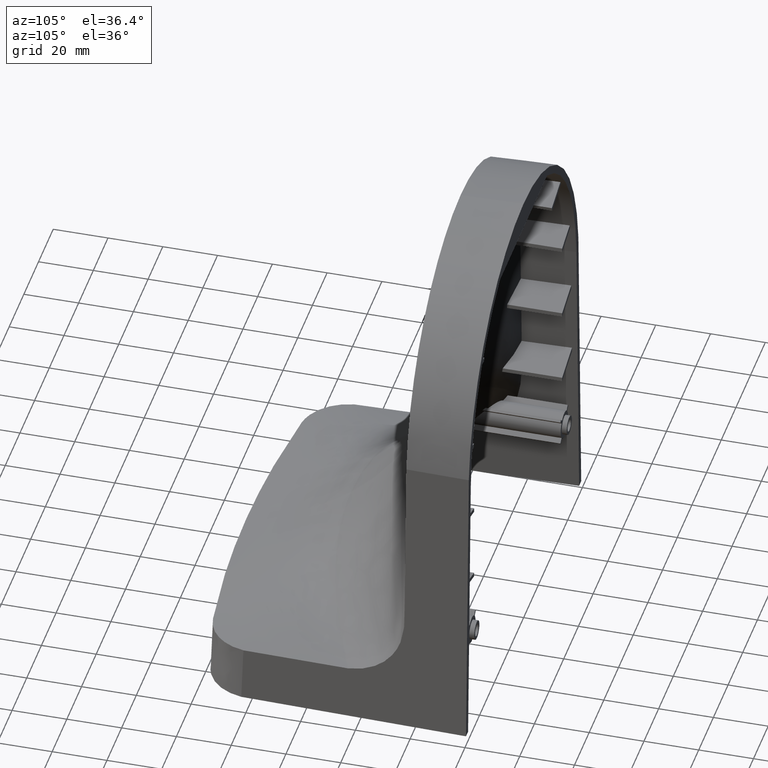
[diagram: clean part render]
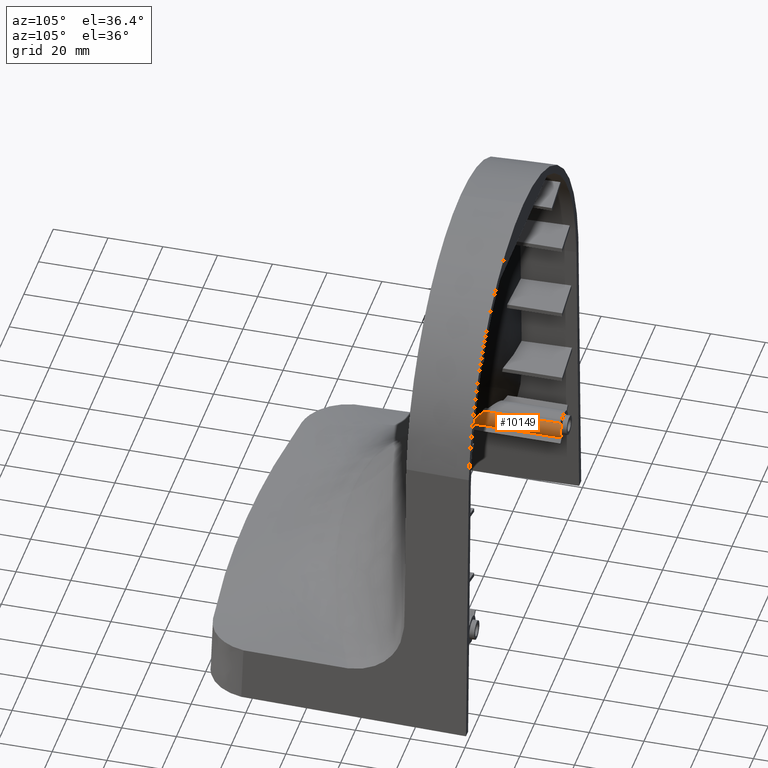
[diagram: same view with one face highlighted and labeled with its STEP entity id]
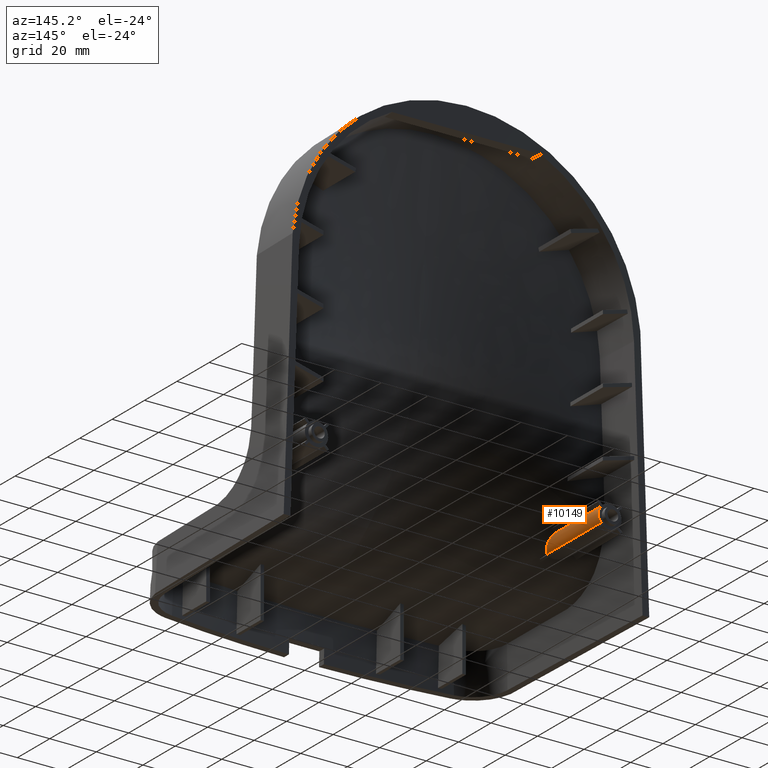
[diagram: same view with one face highlighted and labeled with its STEP entity id]
A machine part, auxiliary view. The second image highlights one B-rep face of the part: STEP entity #10149.
A second angle (auxiliary view) of the same face is appended — the face is thin or edge-on in the first view.
In plain terms, the highlighted cylindrical surface (edge-blend (fillet) strip) has radius 5 mm, axis along (0, 1, 0).
Its self-contained STEP definition (entity closure, byte-faithful):
#355 = CARTESIAN_POINT ( 'NONE',  ( -59.12863478953909890, -2.000000000000000000, 38.66425842927424839 ) ) ;
#1013 = CARTESIAN_POINT ( 'NONE',  ( -58.56503625960989012, -34.92410649284992985, 33.19121324629672642 ) ) ;
#1844 = CARTESIAN_POINT ( 'NONE',  ( -58.21611343058530963, -34.45384546166442163, 34.04600321036977562 ) ) ;
#2123 = CARTESIAN_POINT ( 'NONE',  ( -59.12863478953920549, -35.21922448551605100, 32.33574157072560240 ) ) ;
#3810 = ORIENTED_EDGE ( 'NONE', *, *, #15329, .T. ) ;
#4149 = B_SPLINE_CURVE_WITH_KNOTS ( 'NONE', 3,
 ( #2123, #53035, #48243, #31262, #10616, #18821, #19378, #48514, #40583, #1013, #27572, #53316, #5821, #26741, #9512, #14593, #1844, #43992, #23610, #5271, #31819, #48794, #36622, #49071, #22503, #36342, #45094, #18270, #23052, #44266, #18542, #5550, #19100, #40300, #44812, #39758, #35516, #40857, #52761, #10065, #22777, #14036, #31541, #32095, #6097 ),
 .UNSPECIFIED., .F., .F.,
 ( 4, 2, 1, 1, 1, 2, 2, 2, 1, 1, 2, 2, 2, 1, 1, 2, 2, 2, 1, 1, 2, 2, 2, 1, 1, 2, 2, 4 ),
 ( 0.000000000000000000, 0.06249999999999508726, 0.09374999999999229783, 0.1093749999999909100, 0.1171874999999902023, 0.1210937499999903549, 0.1249999999999905076, 0.1874999999999977796, 0.2187500000000002498, 0.2343750000000018319, 0.2421875000000023037, 0.2500000000000027756, 0.3125000000000188183, 0.3437500000000260902, 0.3593750000000288658, 0.3671875000000291989, 0.3750000000000295319, 0.4375000000000410227, 0.4687500000000475731, 0.4843750000000508482, 0.4921875000000515699, 0.5000000000000522915, 0.6250000000000329736, 0.6875000000000250910, 0.7187500000000210942, 0.7343750000000198730, 0.7500000000000186517, 1.000000000000000000 ),
 .UNSPECIFIED. ) ;
#4468 = VERTEX_POINT ( 'NONE', #30658 ) ;
#5044 = DIRECTION ( 'NONE',  ( 0.000000000000000000, -1.000000000000000000, 0.000000000000000000 ) ) ;
#5271 = CARTESIAN_POINT ( 'NONE',  ( -58.12723923534719717, -34.24423699587433134, 34.36960634789831914 ) ) ;
#5550 = CARTESIAN_POINT ( 'NONE',  ( -58.00476202913282009, -33.21333001664080342, 35.71880375307776490 ) ) ;
#5661 = LINE ( 'NONE', #31374, #16840 ) ;
#5821 = CARTESIAN_POINT ( 'NONE',  ( -58.33230763439989630, -34.65801779793859794, 33.70591202094399108 ) ) ;
#6097 = CARTESIAN_POINT ( 'NONE',  ( -59.12863478953909890, -30.23777583776625022, 38.66425842927424839 ) ) ;
#8849 = DIRECTION ( 'NONE',  ( 0.000000000000000000, 0.000000000000000000, 1.000000000000000000 ) ) ;
#9449 = EDGE_CURVE ( 'NONE', #26508, #4468, #17956, .T. ) ;
#9512 = CARTESIAN_POINT ( 'NONE',  ( -58.24597500065441835, -34.51329696354621035, 33.95034632925386830 ) ) ;
#9693 = FACE_OUTER_BOUND ( 'NONE', #50680, .T. ) ;
#10065 = CARTESIAN_POINT ( 'NONE',  ( -58.29998422718709605, -31.84338393622985919, 37.20613909134686992 ) ) ;
#10149 = ADVANCED_FACE ( 'NONE', ( #9693 ), #26926, .T. ) ;
#10616 = CARTESIAN_POINT ( 'NONE',  ( -58.70776554954989024, -35.03689188591146575, 32.93292181172869704 ) ) ;
#10912 = VERTEX_POINT ( 'NONE', #355 ) ;
#14036 = CARTESIAN_POINT ( 'NONE',  ( -58.33574017759458741, -31.74725031592112146, 37.30150851543640300 ) ) ;
#14593 = CARTESIAN_POINT ( 'NONE',  ( -58.22792741793259097, -34.47777211189369240, 34.00767613554211266 ) ) ;
#15329 = EDGE_CURVE ( 'NONE', #26508, #10912, #37760, .T. ) ;
#16840 = VECTOR ( 'NONE', #31100, 1000.000000000000000 ) ;
#17598 = VERTEX_POINT ( 'NONE', #25573 ) ;
#17956 = LINE ( 'NONE', #27535, #30588 ) ;
#18270 = CARTESIAN_POINT ( 'NONE',  ( -58.00529007781756263, -33.61161843111369052, 35.23129766691222642 ) ) ;
#18542 = CARTESIAN_POINT ( 'NONE',  ( -58.00255797231403676, -33.25737567424927477, 35.66641904245685168 ) ) ;
#18821 = CARTESIAN_POINT ( 'NONE',  ( -58.63256593167449182, -34.98088672876086491, 33.06517473738954038 ) ) ;
#19100 = CARTESIAN_POINT ( 'NONE',  ( -58.00641502113961678, -33.18385831734553193, 35.75373796251753333 ) ) ;
#19378 = CARTESIAN_POINT ( 'NONE',  ( -58.59613178176459058, -34.95105747850035982, 33.13226920936681097 ) ) ;
#22279 = DIRECTION ( 'NONE',  ( 0.000000000000000000, 0.000000000000000000, 1.000000000000000000 ) ) ;
#22503 = CARTESIAN_POINT ( 'NONE',  ( -58.03404561738379641, -33.85161268480140961, 34.91755634471828529 ) ) ;
#22777 = CARTESIAN_POINT ( 'NONE',  ( -58.32324693881534472, -31.78027928487234277, 37.26886206841980709 ) ) ;
#23052 = CARTESIAN_POINT ( 'NONE',  ( -57.99987087343706094, -33.44412468131116611, 35.43986233705781075 ) ) ;
#23325 = CARTESIAN_POINT ( 'NONE',  ( -63.00000000000000000, -2.000000000000000000, 35.50000000000000000 ) ) ;
#23610 = CARTESIAN_POINT ( 'NONE',  ( -58.16278482286394791, -34.33978070260081950, 34.22622522183660010 ) ) ;
#24538 = ORIENTED_EDGE ( 'NONE', *, *, #36372, .F. ) ;
#25573 = CARTESIAN_POINT ( 'NONE',  ( -59.12863478953909890, -30.23777583776625022, 38.66425842927424839 ) ) ;
#26508 = VERTEX_POINT ( 'NONE', #41259 ) ;
#26646 = DIRECTION ( 'NONE',  ( 0.000000000000000000, 1.000000000000000000, 0.000000000000000000 ) ) ;
#26741 = CARTESIAN_POINT ( 'NONE',  ( -58.29036668472624427, -34.59361914442281716, 33.81769887963806553 ) ) ;
#26926 = CYLINDRICAL_SURFACE ( 'NONE', #49522, 4.999999999999997335 ) ;
#27535 = CARTESIAN_POINT ( 'NONE',  ( -59.12863478953920549, -102.0009999999999906, 32.33574157072564503 ) ) ;
#27572 = CARTESIAN_POINT ( 'NONE',  ( -58.48753260999929182, -34.85455041764691231, 33.34081871698214883 ) ) ;
#28650 = EDGE_CURVE ( 'NONE', #4468, #17598, #4149, .T. ) ;
#30588 = VECTOR ( 'NONE', #39993, 1000.000000000000000 ) ;
#30658 = CARTESIAN_POINT ( 'NONE',  ( -59.12863478953920549, -35.21922448551605100, 32.33574157072560240 ) ) ;
#31100 = DIRECTION ( 'NONE',  ( 0.000000000000000000, 1.000000000000000000, 0.000000000000000000 ) ) ;
#31262 = CARTESIAN_POINT ( 'NONE',  ( -58.77619712900640536, -35.07859438323181678, 32.82283972834894570 ) ) ;
#31374 = CARTESIAN_POINT ( 'NONE',  ( -59.12863478953909890, -102.0009999999999906, 38.66425842927424839 ) ) ;
#31541 = CARTESIAN_POINT ( 'NONE',  ( -58.53564798733190599, -31.23081572036820930, 37.80935081132565045 ) ) ;
#31819 = CARTESIAN_POINT ( 'NONE',  ( -58.08350281022283212, -34.09264962535122834, 34.58714217995429863 ) ) ;
#32095 = CARTESIAN_POINT ( 'NONE',  ( -58.79570455712383392, -30.73596497415977069, 38.25690410520923024 ) ) ;
#35516 = CARTESIAN_POINT ( 'NONE',  ( -58.14377875541147489, -32.33857442144737604, 36.69860910294703871 ) ) ;
#36039 = AXIS2_PLACEMENT_3D ( 'NONE', #23325, #5044, #22279 ) ;
#36342 = CARTESIAN_POINT ( 'NONE',  ( -58.03176933977542262, -33.83675847947787219, 34.93733988206513885 ) ) ;
#36372 = EDGE_CURVE ( 'NONE', #17598, #10912, #5661, .T. ) ;
#36622 = CARTESIAN_POINT ( 'NONE',  ( -58.04553742464041477, -33.92042364119854625, 34.82520907323043957 ) ) ;
#37760 = CIRCLE ( 'NONE', #36039, 4.999999999999997335 ) ;
#39662 = CARTESIAN_POINT ( 'NONE',  ( -63.00000000000000000, -102.0009999999999906, 35.50000000000000000 ) ) ;
#39758 = CARTESIAN_POINT ( 'NONE',  ( -58.05916943832183819, -32.69857250699696749, 36.31238729229894346 ) ) ;
#39993 = DIRECTION ( 'NONE',  ( 0.000000000000000000, -1.000000000000000000, 0.000000000000000000 ) ) ;
#40300 = CARTESIAN_POINT ( 'NONE',  ( -58.00739358000292611, -33.16818324410340324, 35.77225299397574787 ) ) ;
#40583 = CARTESIAN_POINT ( 'NONE',  ( -58.57058059791279447, -34.92901403556063400, 33.18058820473837045 ) ) ;
#40857 = CARTESIAN_POINT ( 'NONE',  ( -58.19387606627232401, -32.15569654314994352, 36.89049750608265299 ) ) ;
#40906 = ORIENTED_EDGE ( 'NONE', *, *, #9449, .F. ) ;
#41259 = CARTESIAN_POINT ( 'NONE',  ( -59.12863478953920549, -2.000000000000000000, 32.33574157072564503 ) ) ;
#43992 = CARTESIAN_POINT ( 'NONE',  ( -58.20985649772103443, -34.44077602919278291, 34.06677451050421723 ) ) ;
#44266 = CARTESIAN_POINT ( 'NONE',  ( -57.99934004431850809, -33.35900586456561001, 35.54430840532810265 ) ) ;
#44812 = CARTESIAN_POINT ( 'NONE',  ( -58.02354383009838301, -32.93089638256157770, 36.05165789893651151 ) ) ;
#45094 = CARTESIAN_POINT ( 'NONE',  ( -58.01471264774014713, -33.71962162095711335, 35.09269230510561499 ) ) ;
#48243 = CARTESIAN_POINT ( 'NONE',  ( -58.91830802049901195, -35.15350886706142575, 32.60693218166626650 ) ) ;
#48514 = CARTESIAN_POINT ( 'NONE',  ( -58.58076762654956582, -34.93788334779304705, 33.16123269379006189 ) ) ;
#48794 = CARTESIAN_POINT ( 'NONE',  ( -58.06403031047797469, -34.01478863585039392, 34.69652557056408426 ) ) ;
#49071 = CARTESIAN_POINT ( 'NONE',  ( -58.03852089668627912, -33.87923581049371791, 34.88058712611872636 ) ) ;
#49522 = AXIS2_PLACEMENT_3D ( 'NONE', #39662, #26646, #8849 ) ;
#50680 = EDGE_LOOP ( 'NONE', ( #40906, #3810, #24538, #55460 ) ) ;
#52761 = CARTESIAN_POINT ( 'NONE',  ( -58.26607924650362946, -31.93773548905209125, 37.11185359937778827 ) ) ;
#53035 = CARTESIAN_POINT ( 'NONE',  ( -59.02004329249339065, -35.19212534473947329, 32.46867015450028759 ) ) ;
#53316 = CARTESIAN_POINT ( 'NONE',  ( -58.42133053232534223, -34.78077303429027722, 33.48484761873525883 ) ) ;
#55460 = ORIENTED_EDGE ( 'NONE', *, *, #28650, .F. ) ;